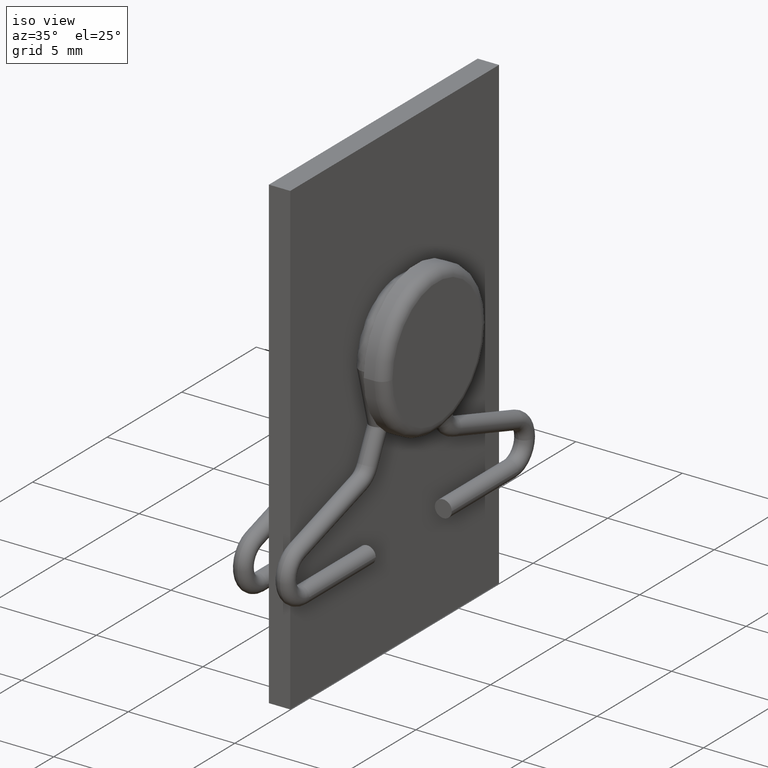
[diagram: clean part render]
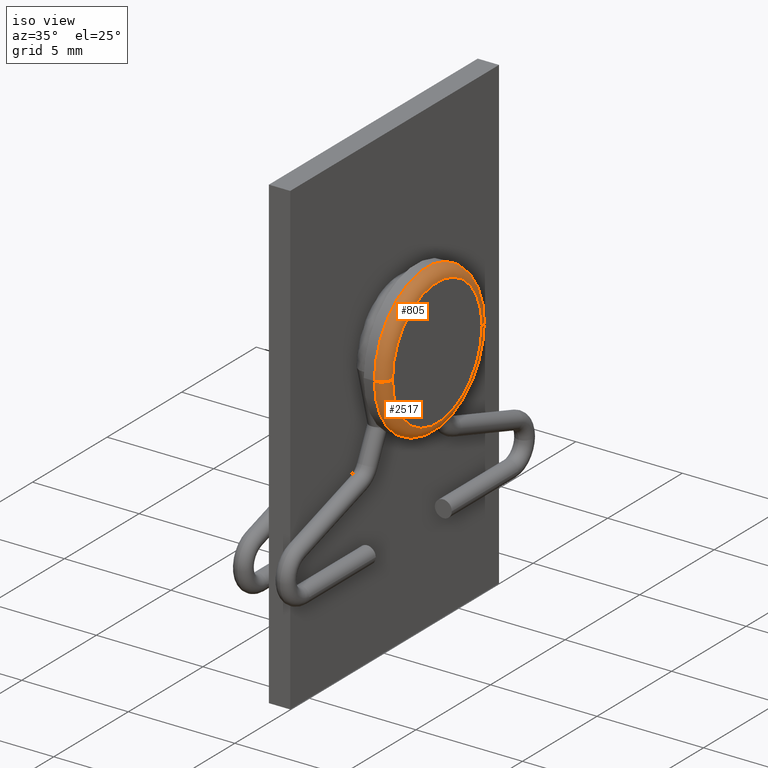
[diagram: same view with one multi-face feature highlighted, each face labeled with its STEP entity id]
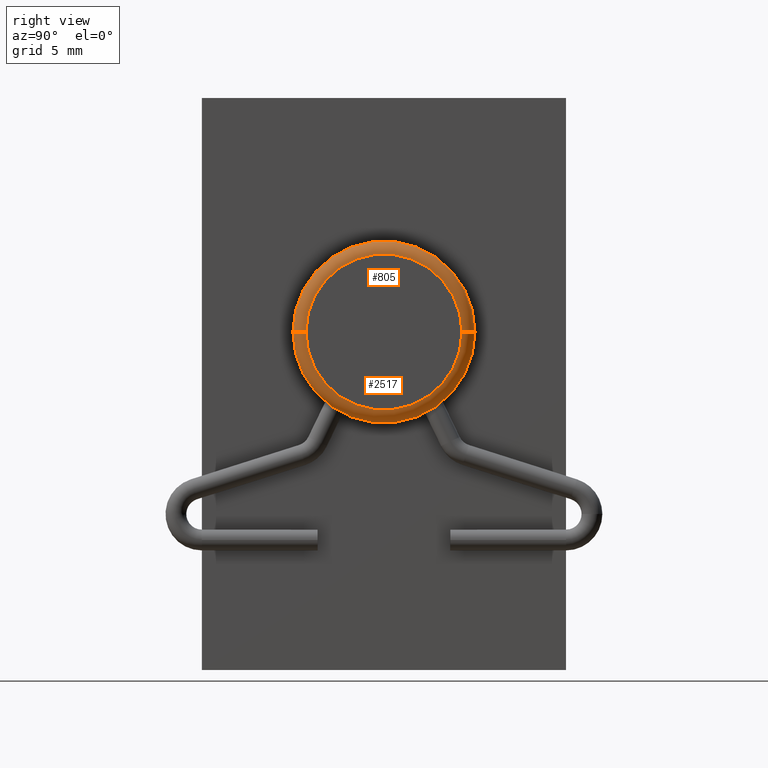
[diagram: same view with one multi-face feature highlighted, each face labeled with its STEP entity id]
A machine part, iso view. The highlighted faces form ONE feature: a constant-radius fillet chain: 2 tangent blend faces with common blend radius 0.5 mm. The faces share edges in the B-rep.
A second angle (right view) of the same feature is appended — it is thin or edge-on in the first view.
Their STEP definitions:
[1] entity #2517 (Torus):
#18 = AXIS2_PLACEMENT_3D ( 'NONE', #1320, #2565, #1381 ) ;
#46 = TOROIDAL_SURFACE ( 'NONE', #1719, 3.000000000000000000, 0.5000000000000000000 ) ;
#109 = FACE_OUTER_BOUND ( 'NONE', #2131, .T. ) ;
#135 = EDGE_CURVE ( 'NONE', #1314, #1133, #1898, .T. ) ;
#261 = AXIS2_PLACEMENT_3D ( 'NONE', #2701, #2782, #3033 ) ;
#487 = CARTESIAN_POINT ( 'NONE',  ( 1.999999999999999556, 7.589415207398530052E-16, 13.00000000000000000 ) ) ;
#497 = AXIS2_PLACEMENT_3D ( 'NONE', #487, #2442, #2933 ) ;
#588 = CARTESIAN_POINT ( 'NONE',  ( 1.999999999999998224, 3.500000000000001332, 13.00000000000000000 ) ) ;
#947 = ORIENTED_EDGE ( 'NONE', *, *, #2797, .F. ) ;
#1003 = CARTESIAN_POINT ( 'NONE',  ( 2.499999999999998668, 3.000000000000000888, 13.00000000000000000 ) ) ;
#1121 = CARTESIAN_POINT ( 'NONE',  ( 2.000000000000001332, -2.999999999999999112, 13.00000000000000000 ) ) ;
#1133 = VERTEX_POINT ( 'NONE', #1003 ) ;
#1180 = VERTEX_POINT ( 'NONE', #2416 ) ;
#1247 = ORIENTED_EDGE ( 'NONE', *, *, #2030, .F. ) ;
#1314 = VERTEX_POINT ( 'NONE', #588 ) ;
#1320 = CARTESIAN_POINT ( 'NONE',  ( 2.500000000000000000, 9.486769009248163798E-16, 13.00000000000000000 ) ) ;
#1377 = DIRECTION ( 'NONE',  ( -4.647176520570427338E-32, 1.224646799147353207E-16, 1.000000000000000000 ) ) ;
#1381 = DIRECTION ( 'NONE',  ( -4.336808689942017736E-16, 1.000000000000000000, 0.000000000000000000 ) ) ;
#1385 = CIRCLE ( 'NONE', #18, 3.000000000000000000 ) ;
#1537 = EDGE_CURVE ( 'NONE', #2201, #1133, #1385, .T. ) ;
#1696 = ORIENTED_EDGE ( 'NONE', *, *, #135, .T. ) ;
#1719 = AXIS2_PLACEMENT_3D ( 'NONE', #2095, #3059, #2555 ) ;
#1875 = CIRCLE ( 'NONE', #497, 3.500000000000000000 ) ;
#1898 = CIRCLE ( 'NONE', #261, 0.5000000000000000000 ) ;
#2030 = EDGE_CURVE ( 'NONE', #1180, #2201, #2713, .T. ) ;
#2095 = CARTESIAN_POINT ( 'NONE',  ( 2.000000000000000000, 7.589415207398531038E-16, 13.00000000000000000 ) ) ;
#2131 = EDGE_LOOP ( 'NONE', ( #1247, #947, #1696, #2277 ) ) ;
#2147 = CARTESIAN_POINT ( 'NONE',  ( 2.500000000000001332, -2.999999999999999112, 13.00000000000000000 ) ) ;
#2201 = VERTEX_POINT ( 'NONE', #2147 ) ;
#2277 = ORIENTED_EDGE ( 'NONE', *, *, #1537, .F. ) ;
#2306 = AXIS2_PLACEMENT_3D ( 'NONE', #1121, #1377, #2351 ) ;
#2351 = DIRECTION ( 'NONE',  ( 0.000000000000000000, -1.000000000000000000, 0.000000000000000000 ) ) ;
#2416 = CARTESIAN_POINT ( 'NONE',  ( 2.000000000000000888, -3.499999999999999112, 13.00000000000000000 ) ) ;
#2442 = DIRECTION ( 'NONE',  ( -1.000000000000000000, -3.794707603699264533E-16, -0.000000000000000000 ) ) ;
#2517 = ADVANCED_FACE ( 'NONE', ( #109 ), #46, .T. ) ;
#2555 = DIRECTION ( 'NONE',  ( -3.794707603699264533E-16, 1.000000000000000000, 0.000000000000000000 ) ) ;
#2565 = DIRECTION ( 'NONE',  ( 1.000000000000000000, 3.794707603699264533E-16, 0.000000000000000000 ) ) ;
#2701 = CARTESIAN_POINT ( 'NONE',  ( 1.999999999999998668, 3.000000000000000888, 13.00000000000000000 ) ) ;
#2713 = CIRCLE ( 'NONE', #2306, 0.5000000000000000000 ) ;
#2782 = DIRECTION ( 'NONE',  ( 0.000000000000000000, 0.000000000000000000, -1.000000000000000000 ) ) ;
#2797 = EDGE_CURVE ( 'NONE', #1314, #1180, #1875, .T. ) ;
#2933 = DIRECTION ( 'NONE',  ( -3.717264591378872204E-16, 1.000000000000000000, 0.000000000000000000 ) ) ;
#3033 = DIRECTION ( 'NONE',  ( -1.000000000000000000, 0.000000000000000000, 0.000000000000000000 ) ) ;
#3059 = DIRECTION ( 'NONE',  ( 1.000000000000000000, 3.794707603699264533E-16, 0.000000000000000000 ) ) ;
[2] entity #805 (Torus):
#16 = TOROIDAL_SURFACE ( 'NONE', #2098, 3.000000000000000000, 0.5000000000000000000 ) ;
#123 = AXIS2_PLACEMENT_3D ( 'NONE', #1816, #2322, #388 ) ;
#135 = EDGE_CURVE ( 'NONE', #1314, #1133, #1898, .T. ) ;
#219 = FACE_OUTER_BOUND ( 'NONE', #1550, .T. ) ;
#220 = EDGE_CURVE ( 'NONE', #1180, #1314, #2698, .T. ) ;
#261 = AXIS2_PLACEMENT_3D ( 'NONE', #2701, #2782, #3033 ) ;
#368 = AXIS2_PLACEMENT_3D ( 'NONE', #2608, #1336, #1379 ) ;
#388 = DIRECTION ( 'NONE',  ( -4.336808689942017736E-16, 1.000000000000000000, 0.000000000000000000 ) ) ;
#474 = CIRCLE ( 'NONE', #123, 3.000000000000000000 ) ;
#588 = CARTESIAN_POINT ( 'NONE',  ( 1.999999999999998224, 3.500000000000001332, 13.00000000000000000 ) ) ;
#593 = ORIENTED_EDGE ( 'NONE', *, *, #1454, .F. ) ;
#727 = DIRECTION ( 'NONE',  ( 1.000000000000000000, 3.794707603699264533E-16, 0.000000000000000000 ) ) ;
#805 = ADVANCED_FACE ( 'NONE', ( #219 ), #16, .T. ) ;
#978 = CARTESIAN_POINT ( 'NONE',  ( 2.000000000000000000, 7.589415207398531038E-16, 13.00000000000000000 ) ) ;
#1003 = CARTESIAN_POINT ( 'NONE',  ( 2.499999999999998668, 3.000000000000000888, 13.00000000000000000 ) ) ;
#1121 = CARTESIAN_POINT ( 'NONE',  ( 2.000000000000001332, -2.999999999999999112, 13.00000000000000000 ) ) ;
#1133 = VERTEX_POINT ( 'NONE', #1003 ) ;
#1180 = VERTEX_POINT ( 'NONE', #2416 ) ;
#1256 = ORIENTED_EDGE ( 'NONE', *, *, #135, .F. ) ;
#1314 = VERTEX_POINT ( 'NONE', #588 ) ;
#1336 = DIRECTION ( 'NONE',  ( -1.000000000000000000, -3.794707603699264533E-16, -0.000000000000000000 ) ) ;
#1377 = DIRECTION ( 'NONE',  ( -4.647176520570427338E-32, 1.224646799147353207E-16, 1.000000000000000000 ) ) ;
#1379 = DIRECTION ( 'NONE',  ( -3.717264591378872204E-16, 1.000000000000000000, 0.000000000000000000 ) ) ;
#1454 = EDGE_CURVE ( 'NONE', #1133, #2201, #474, .T. ) ;
#1550 = EDGE_LOOP ( 'NONE', ( #3134, #2507, #593, #1256 ) ) ;
#1700 = DIRECTION ( 'NONE',  ( -3.794707603699264533E-16, 1.000000000000000000, 0.000000000000000000 ) ) ;
#1816 = CARTESIAN_POINT ( 'NONE',  ( 2.500000000000000000, 9.486769009248163798E-16, 13.00000000000000000 ) ) ;
#1898 = CIRCLE ( 'NONE', #261, 0.5000000000000000000 ) ;
#2030 = EDGE_CURVE ( 'NONE', #1180, #2201, #2713, .T. ) ;
#2098 = AXIS2_PLACEMENT_3D ( 'NONE', #978, #727, #1700 ) ;
#2147 = CARTESIAN_POINT ( 'NONE',  ( 2.500000000000001332, -2.999999999999999112, 13.00000000000000000 ) ) ;
#2201 = VERTEX_POINT ( 'NONE', #2147 ) ;
#2306 = AXIS2_PLACEMENT_3D ( 'NONE', #1121, #1377, #2351 ) ;
#2322 = DIRECTION ( 'NONE',  ( 1.000000000000000000, 3.794707603699264533E-16, 0.000000000000000000 ) ) ;
#2351 = DIRECTION ( 'NONE',  ( 0.000000000000000000, -1.000000000000000000, 0.000000000000000000 ) ) ;
#2416 = CARTESIAN_POINT ( 'NONE',  ( 2.000000000000000888, -3.499999999999999112, 13.00000000000000000 ) ) ;
#2507 = ORIENTED_EDGE ( 'NONE', *, *, #2030, .T. ) ;
#2608 = CARTESIAN_POINT ( 'NONE',  ( 1.999999999999999556, 7.589415207398530052E-16, 13.00000000000000000 ) ) ;
#2698 = CIRCLE ( 'NONE', #368, 3.500000000000000000 ) ;
#2701 = CARTESIAN_POINT ( 'NONE',  ( 1.999999999999998668, 3.000000000000000888, 13.00000000000000000 ) ) ;
#2713 = CIRCLE ( 'NONE', #2306, 0.5000000000000000000 ) ;
#2782 = DIRECTION ( 'NONE',  ( 0.000000000000000000, 0.000000000000000000, -1.000000000000000000 ) ) ;
#3033 = DIRECTION ( 'NONE',  ( -1.000000000000000000, 0.000000000000000000, 0.000000000000000000 ) ) ;
#3134 = ORIENTED_EDGE ( 'NONE', *, *, #220, .F. ) ;